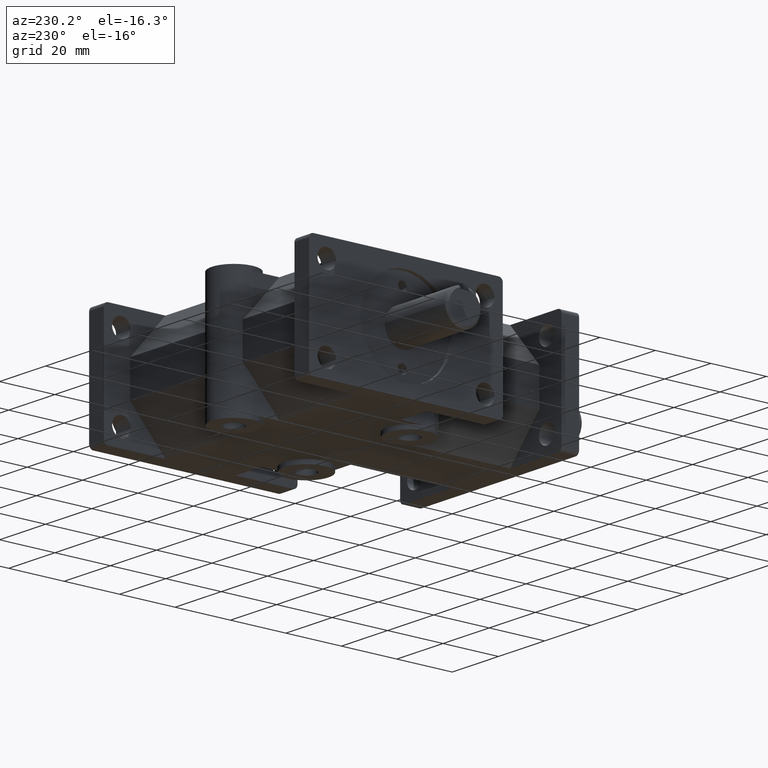
[diagram: clean part render]
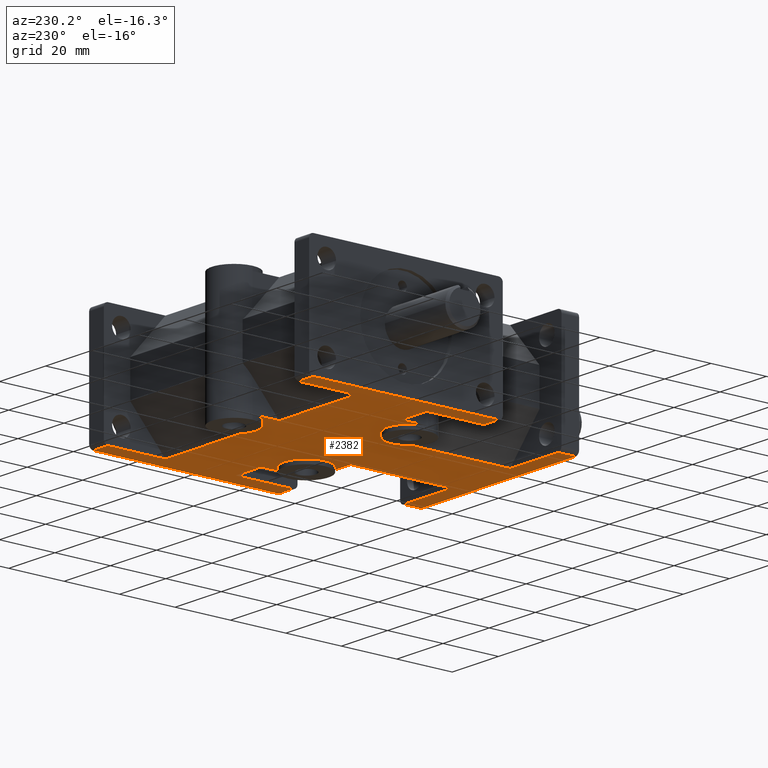
[diagram: same view with one face highlighted and labeled with its STEP entity id]
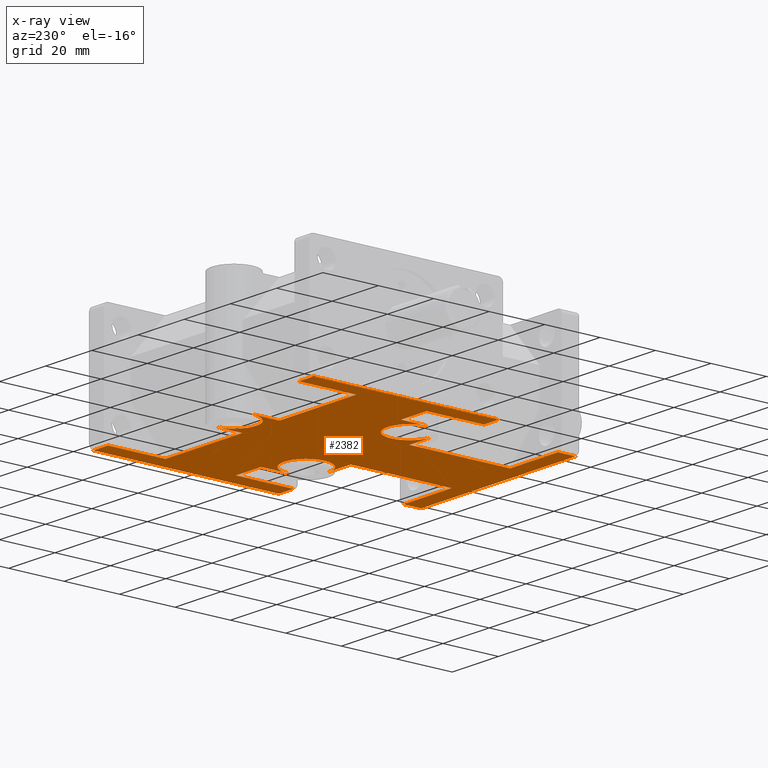
[diagram: x-ray of the same camera — body ghosted, the highlighted face saturated]
A machine part, auxiliary view. The second image highlights one B-rep face of the part: STEP entity #2382.
The next image is the same camera in x-ray: the body ghosted, the highlighted face saturated — about 0% of this face is hidden behind the body in this view.
In plain terms, the highlighted planar face has unit normal (0, 0, 1).
Its self-contained STEP definition (entity closure, byte-faithful):
#118=CIRCLE('',#2540,0.315);
#119=CIRCLE('',#2541,0.315);
#120=CIRCLE('',#2542,0.315);
#121=CIRCLE('',#2543,0.315);
#224=FACE_OUTER_BOUND('',#359,.T.);
#359=EDGE_LOOP('',(#1639,#1640,#1641,#1642,#1643,#1644,#1645,#1646,#1647,
#1648,#1649,#1650,#1651,#1652,#1653,#1654,#1655,#1656,#1657,#1658,#1659,
#1660,#1661,#1662,#1663,#1664,#1665,#1666,#1667,#1668,#1669));
#581=LINE('',#3606,#809);
#586=LINE('',#3617,#814);
#587=LINE('',#3619,#815);
#588=LINE('',#3625,#816);
#589=LINE('',#3627,#817);
#590=LINE('',#3629,#818);
#591=LINE('',#3631,#819);
#592=LINE('',#3633,#820);
#593=LINE('',#3635,#821);
#594=LINE('',#3637,#822);
#595=LINE('',#3639,#823);
#596=LINE('',#3641,#824);
#597=LINE('',#3645,#825);
#598=LINE('',#3647,#826);
#599=LINE('',#3649,#827);
#600=LINE('',#3651,#828);
#601=LINE('',#3653,#829);
#602=LINE('',#3655,#830);
#603=LINE('',#3657,#831);
#604=LINE('',#3659,#832);
#605=LINE('',#3661,#833);
#606=LINE('',#3665,#834);
#607=LINE('',#3667,#835);
#608=LINE('',#3669,#836);
#609=LINE('',#3671,#837);
#610=LINE('',#3673,#838);
#611=LINE('',#3674,#839);
#809=VECTOR('',#2839,1.);
#814=VECTOR('',#2850,1.);
#815=VECTOR('',#2851,1.);
#816=VECTOR('',#2856,1.);
#817=VECTOR('',#2857,1.);
#818=VECTOR('',#2858,1.);
#819=VECTOR('',#2859,1.);
#820=VECTOR('',#2860,1.);
#821=VECTOR('',#2861,1.);
#822=VECTOR('',#2862,1.);
#823=VECTOR('',#2863,1.);
#824=VECTOR('',#2864,1.);
#825=VECTOR('',#2867,1.);
#826=VECTOR('',#2868,1.);
#827=VECTOR('',#2869,1.);
#828=VECTOR('',#2870,1.);
#829=VECTOR('',#2871,1.);
#830=VECTOR('',#2872,1.);
#831=VECTOR('',#2873,1.);
#832=VECTOR('',#2874,1.);
#833=VECTOR('',#2875,1.);
#834=VECTOR('',#2878,1.);
#835=VECTOR('',#2879,1.);
#836=VECTOR('',#2880,1.);
#837=VECTOR('',#2881,1.);
#838=VECTOR('',#2882,1.);
#839=VECTOR('',#2883,1.);
#1042=VERTEX_POINT('',#3603);
#1043=VERTEX_POINT('',#3605);
#1046=VERTEX_POINT('',#3616);
#1047=VERTEX_POINT('',#3618);
#1048=VERTEX_POINT('',#3620);
#1049=VERTEX_POINT('',#3622);
#1050=VERTEX_POINT('',#3624);
#1051=VERTEX_POINT('',#3626);
#1052=VERTEX_POINT('',#3628);
#1053=VERTEX_POINT('',#3630);
#1054=VERTEX_POINT('',#3632);
#1055=VERTEX_POINT('',#3634);
#1056=VERTEX_POINT('',#3636);
#1057=VERTEX_POINT('',#3638);
#1058=VERTEX_POINT('',#3640);
#1059=VERTEX_POINT('',#3642);
#1060=VERTEX_POINT('',#3644);
#1061=VERTEX_POINT('',#3646);
#1062=VERTEX_POINT('',#3648);
#1063=VERTEX_POINT('',#3650);
#1064=VERTEX_POINT('',#3652);
#1065=VERTEX_POINT('',#3654);
#1066=VERTEX_POINT('',#3656);
#1067=VERTEX_POINT('',#3658);
#1068=VERTEX_POINT('',#3660);
#1069=VERTEX_POINT('',#3662);
#1070=VERTEX_POINT('',#3664);
#1071=VERTEX_POINT('',#3666);
#1072=VERTEX_POINT('',#3668);
#1073=VERTEX_POINT('',#3670);
#1074=VERTEX_POINT('',#3672);
#1277=EDGE_CURVE('',#1043,#1042,#581,.T.);
#1283=EDGE_CURVE('',#1043,#1046,#586,.T.);
#1284=EDGE_CURVE('',#1042,#1047,#587,.T.);
#1285=EDGE_CURVE('',#1047,#1048,#118,.T.);
#1286=EDGE_CURVE('',#1048,#1049,#119,.T.);
#1287=EDGE_CURVE('',#1050,#1049,#588,.T.);
#1288=EDGE_CURVE('',#1050,#1051,#589,.T.);
#1289=EDGE_CURVE('',#1052,#1051,#590,.T.);
#1290=EDGE_CURVE('',#1053,#1052,#591,.T.);
#1291=EDGE_CURVE('',#1054,#1053,#592,.T.);
#1292=EDGE_CURVE('',#1055,#1054,#593,.T.);
#1293=EDGE_CURVE('',#1056,#1055,#594,.T.);
#1294=EDGE_CURVE('',#1056,#1057,#595,.T.);
#1295=EDGE_CURVE('',#1058,#1057,#596,.T.);
#1296=EDGE_CURVE('',#1058,#1059,#120,.T.);
#1297=EDGE_CURVE('',#1060,#1059,#597,.T.);
#1298=EDGE_CURVE('',#1060,#1061,#598,.T.);
#1299=EDGE_CURVE('',#1061,#1062,#599,.T.);
#1300=EDGE_CURVE('',#1063,#1062,#600,.T.);
#1301=EDGE_CURVE('',#1064,#1063,#601,.T.);
#1302=EDGE_CURVE('',#1065,#1064,#602,.T.);
#1303=EDGE_CURVE('',#1066,#1065,#603,.T.);
#1304=EDGE_CURVE('',#1066,#1067,#604,.T.);
#1305=EDGE_CURVE('',#1067,#1068,#605,.T.);
#1306=EDGE_CURVE('',#1068,#1069,#121,.T.);
#1307=EDGE_CURVE('',#1070,#1069,#606,.T.);
#1308=EDGE_CURVE('',#1070,#1071,#607,.T.);
#1309=EDGE_CURVE('',#1071,#1072,#608,.T.);
#1310=EDGE_CURVE('',#1073,#1072,#609,.T.);
#1311=EDGE_CURVE('',#1074,#1073,#610,.T.);
#1312=EDGE_CURVE('',#1046,#1074,#611,.T.);
#1639=ORIENTED_EDGE('',*,*,#1283,.F.);
#1640=ORIENTED_EDGE('',*,*,#1277,.T.);
#1641=ORIENTED_EDGE('',*,*,#1284,.T.);
#1642=ORIENTED_EDGE('',*,*,#1285,.T.);
#1643=ORIENTED_EDGE('',*,*,#1286,.T.);
#1644=ORIENTED_EDGE('',*,*,#1287,.F.);
#1645=ORIENTED_EDGE('',*,*,#1288,.T.);
#1646=ORIENTED_EDGE('',*,*,#1289,.F.);
#1647=ORIENTED_EDGE('',*,*,#1290,.F.);
#1648=ORIENTED_EDGE('',*,*,#1291,.F.);
#1649=ORIENTED_EDGE('',*,*,#1292,.F.);
#1650=ORIENTED_EDGE('',*,*,#1293,.F.);
#1651=ORIENTED_EDGE('',*,*,#1294,.T.);
#1652=ORIENTED_EDGE('',*,*,#1295,.F.);
#1653=ORIENTED_EDGE('',*,*,#1296,.T.);
#1654=ORIENTED_EDGE('',*,*,#1297,.F.);
#1655=ORIENTED_EDGE('',*,*,#1298,.T.);
#1656=ORIENTED_EDGE('',*,*,#1299,.T.);
#1657=ORIENTED_EDGE('',*,*,#1300,.F.);
#1658=ORIENTED_EDGE('',*,*,#1301,.F.);
#1659=ORIENTED_EDGE('',*,*,#1302,.F.);
#1660=ORIENTED_EDGE('',*,*,#1303,.F.);
#1661=ORIENTED_EDGE('',*,*,#1304,.T.);
#1662=ORIENTED_EDGE('',*,*,#1305,.T.);
#1663=ORIENTED_EDGE('',*,*,#1306,.T.);
#1664=ORIENTED_EDGE('',*,*,#1307,.F.);
#1665=ORIENTED_EDGE('',*,*,#1308,.T.);
#1666=ORIENTED_EDGE('',*,*,#1309,.T.);
#1667=ORIENTED_EDGE('',*,*,#1310,.F.);
#1668=ORIENTED_EDGE('',*,*,#1311,.F.);
#1669=ORIENTED_EDGE('',*,*,#1312,.F.);
#2295=PLANE('',#2539);
#2382=ADVANCED_FACE('',(#224),#2295,.F.);
#2539=AXIS2_PLACEMENT_3D('',#3615,#2848,#2849);
#2540=AXIS2_PLACEMENT_3D('',#3621,#2852,#2853);
#2541=AXIS2_PLACEMENT_3D('',#3623,#2854,#2855);
#2542=AXIS2_PLACEMENT_3D('',#3643,#2865,#2866);
#2543=AXIS2_PLACEMENT_3D('',#3663,#2876,#2877);
#2839=DIRECTION('',(-1.,0.,0.));
#2848=DIRECTION('center_axis',(0.,0.,1.));
#2849=DIRECTION('ref_axis',(-1.,0.,0.));
#2850=DIRECTION('',(0.,-1.,0.));
#2851=DIRECTION('',(0.,-1.,0.));
#2852=DIRECTION('center_axis',(0.,0.,1.));
#2853=DIRECTION('ref_axis',(1.,0.,0.));
#2854=DIRECTION('center_axis',(0.,0.,1.));
#2855=DIRECTION('ref_axis',(1.,0.,0.));
#2856=DIRECTION('',(1.,0.,0.));
#2857=DIRECTION('',(0.,-1.,0.));
#2858=DIRECTION('',(-1.,0.,0.));
#2859=DIRECTION('',(0.,1.,0.));
#2860=DIRECTION('',(1.,0.,0.));
#2861=DIRECTION('',(0.,-1.,0.));
#2862=DIRECTION('',(-1.,0.,0.));
#2863=DIRECTION('',(0.,1.,0.));
#2864=DIRECTION('',(1.,0.,0.));
#2865=DIRECTION('center_axis',(0.,0.,1.));
#2866=DIRECTION('ref_axis',(1.,0.,0.));
#2867=DIRECTION('',(0.,-1.,0.));
#2868=DIRECTION('',(-1.,0.,0.));
#2869=DIRECTION('',(0.,-1.,0.));
#2870=DIRECTION('',(1.,0.,0.));
#2871=DIRECTION('',(0.,-1.,0.));
#2872=DIRECTION('',(-1.,0.,0.));
#2873=DIRECTION('',(0.,1.,0.));
#2874=DIRECTION('',(1.,0.,0.));
#2875=DIRECTION('',(0.,1.,0.));
#2876=DIRECTION('center_axis',(0.,0.,1.));
#2877=DIRECTION('ref_axis',(1.,0.,0.));
#2878=DIRECTION('',(0.,1.,0.));
#2879=DIRECTION('',(1.,0.,0.));
#2880=DIRECTION('',(0.,1.,0.));
#2881=DIRECTION('',(-1.,0.,0.));
#2882=DIRECTION('',(0.,1.,0.));
#2883=DIRECTION('',(1.,0.,0.));
#3603=CARTESIAN_POINT('',(1.195,2.375,-0.815));
#3605=CARTESIAN_POINT('',(1.625,2.375,-0.815));
#3606=CARTESIAN_POINT('',(-0.8125,2.375,-0.815));
#3615=CARTESIAN_POINT('Origin',(1.66533453693773E-16,2.11143218623482,-0.815));
#3616=CARTESIAN_POINT('',(1.625,1.56,-0.815));
#3617=CARTESIAN_POINT('',(1.625,1.875,-0.815));
#3618=CARTESIAN_POINT('',(1.195,1.995,-0.815));
#3619=CARTESIAN_POINT('',(1.195,2.05321609311741,-0.815));
#3620=CARTESIAN_POINT('',(0.565,1.995,-0.815));
#3621=CARTESIAN_POINT('Origin',(0.88,1.995,-0.815));
#3622=CARTESIAN_POINT('',(0.879999999999999,1.68,-0.815));
#3623=CARTESIAN_POINT('Origin',(0.88,1.995,-0.815));
#3624=CARTESIAN_POINT('',(0.5,1.68,-0.815));
#3625=CARTESIAN_POINT('',(-0.88,1.68,-0.815));
#3626=CARTESIAN_POINT('',(0.5,0.25,-0.815));
#3627=CARTESIAN_POINT('',(0.5,1.18071609311741,-0.815));
#3628=CARTESIAN_POINT('',(1.315,0.25,-0.815));
#3629=CARTESIAN_POINT('',(0.6875,0.25,-0.815));
#3630=CARTESIAN_POINT('',(1.315,0.,-0.815));
#3631=CARTESIAN_POINT('',(1.315,1.05571609311741,-0.815));
#3632=CARTESIAN_POINT('',(-1.315,0.,-0.815));
#3633=CARTESIAN_POINT('',(1.375,0.,-0.815));
#3634=CARTESIAN_POINT('',(-1.315,0.25,-0.815));
#3635=CARTESIAN_POINT('',(-1.315,1.18071609311741,-0.815));
#3636=CARTESIAN_POINT('',(-0.5,0.25,-0.815));
#3637=CARTESIAN_POINT('',(-1.,0.25,-0.815));
#3638=CARTESIAN_POINT('',(-0.5,1.68,-0.815));
#3639=CARTESIAN_POINT('',(-0.5,1.18071609311741,-0.815));
#3640=CARTESIAN_POINT('',(-0.88,1.68,-0.815));
#3641=CARTESIAN_POINT('',(-0.88,1.68,-0.815));
#3642=CARTESIAN_POINT('',(-1.195,1.995,-0.815));
#3643=CARTESIAN_POINT('Origin',(-0.88,1.995,-0.815));
#3644=CARTESIAN_POINT('',(-1.195,2.375,-0.815));
#3645=CARTESIAN_POINT('',(-1.195,1.995,-0.815));
#3646=CARTESIAN_POINT('',(-1.625,2.375,-0.815));
#3647=CARTESIAN_POINT('',(0.8125,2.375,-0.815));
#3648=CARTESIAN_POINT('',(-1.625,1.56,-0.815));
#3649=CARTESIAN_POINT('',(-1.625,1.80571609311741,-0.815));
#3650=CARTESIAN_POINT('',(-1.875,1.56,-0.815));
#3651=CARTESIAN_POINT('',(-0.9375,1.56,-0.815));
#3652=CARTESIAN_POINT('',(-1.875,4.19,-0.815));
#3653=CARTESIAN_POINT('',(-1.875,4.25,-0.815));
#3654=CARTESIAN_POINT('',(-1.625,4.19,-0.815));
#3655=CARTESIAN_POINT('',(-0.8125,4.19,-0.815));
#3656=CARTESIAN_POINT('',(-1.625,3.375,-0.815));
#3657=CARTESIAN_POINT('',(-1.625,4.25,-0.815));
#3658=CARTESIAN_POINT('',(-0.315,3.375,-0.815));
#3659=CARTESIAN_POINT('',(0.8125,3.375,-0.815));
#3660=CARTESIAN_POINT('',(-0.315,3.755,-0.815));
#3661=CARTESIAN_POINT('',(-0.315000000000001,2.64567218590706,-0.815));
#3662=CARTESIAN_POINT('',(0.315,3.755,-0.815));
#3663=CARTESIAN_POINT('Origin',(-2.22044604925031E-16,3.755,-0.815));
#3664=CARTESIAN_POINT('',(0.315,3.375,-0.815));
#3665=CARTESIAN_POINT('',(0.315,3.755,-0.815));
#3666=CARTESIAN_POINT('',(1.625,3.375,-0.815));
#3667=CARTESIAN_POINT('',(-0.8125,3.375,-0.815));
#3668=CARTESIAN_POINT('',(1.625,4.19,-0.815));
#3669=CARTESIAN_POINT('',(1.625,2.99321609311741,-0.815));
#3670=CARTESIAN_POINT('',(1.875,4.19,-0.815));
#3671=CARTESIAN_POINT('',(0.9375,4.19,-0.815));
#3672=CARTESIAN_POINT('',(1.875,1.56,-0.815));
#3673=CARTESIAN_POINT('',(1.875,4.25,-0.815));
#3674=CARTESIAN_POINT('',(0.8125,1.56,-0.815));